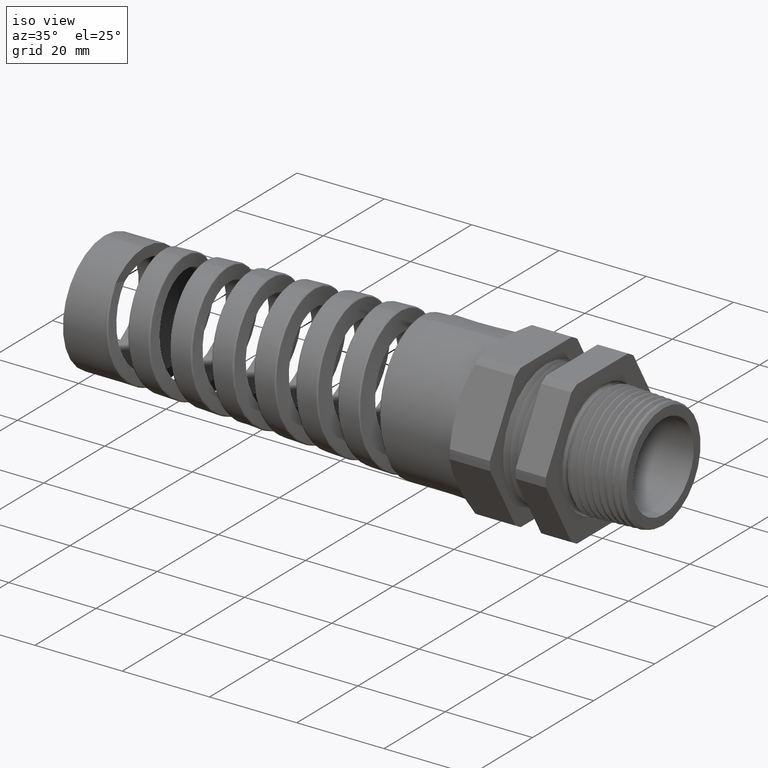
[diagram: clean part render]
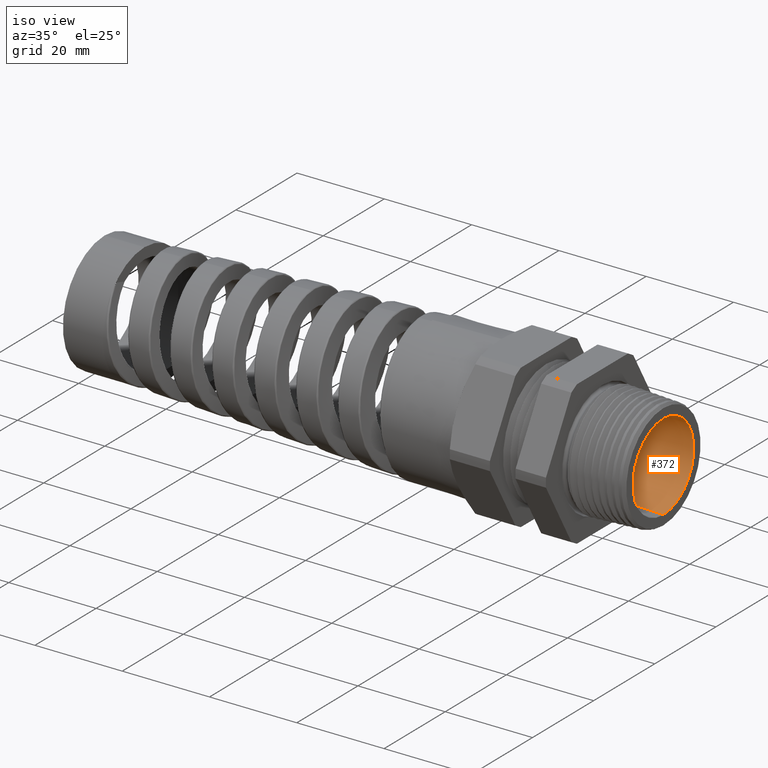
[diagram: same view with one face highlighted and labeled with its STEP entity id]
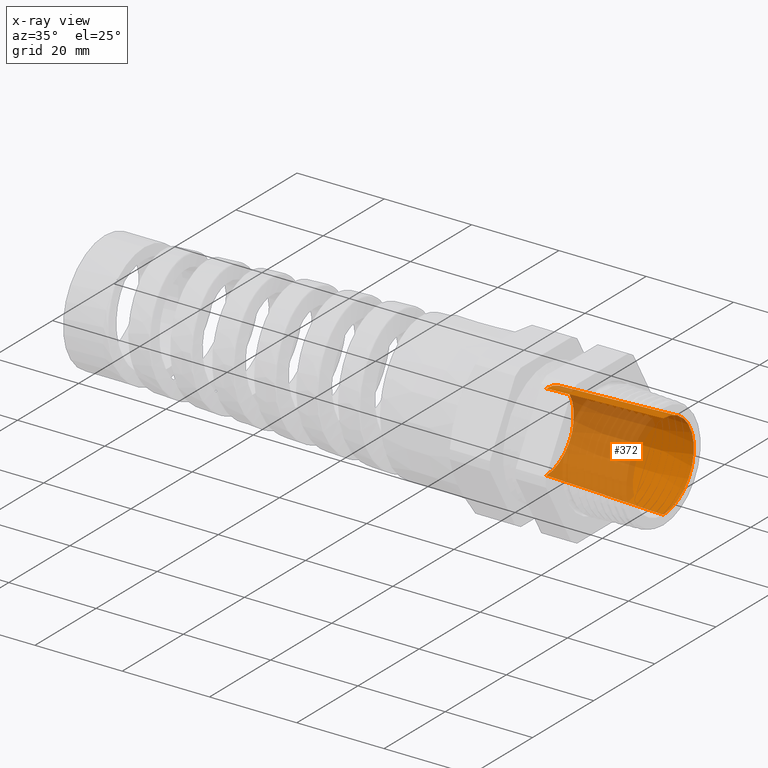
[diagram: x-ray of the same camera — body ghosted, the highlighted face saturated]
A machine part, iso view. The second image highlights one B-rep face of the part: STEP entity #372.
The next image is the same camera in x-ray: the body ghosted, the highlighted face saturated — about 56% of this face is hidden behind the body in this view.
In plain terms, the highlighted conical surface has half-angle 2 deg.
Its self-contained STEP definition (entity closure, byte-faithful):
#155 = EDGE_CURVE ( 'NONE', #529, #538, #1726, .T. ) ;
#185 = ORIENTED_EDGE ( 'NONE', *, *, #13715, .T. ) ;
#195 = ORIENTED_EDGE ( 'NONE', *, *, #510, .T. ) ;
#205 = ORIENTED_EDGE ( 'NONE', *, *, #545, .F. ) ;
#352 = EDGE_LOOP ( 'NONE', ( #205, #185, #195, #14021 ) ) ;
#372 = ADVANCED_FACE ( 'NONE', ( #1760 ), #1758, .F. ) ;
#510 = EDGE_CURVE ( 'NONE', #537, #538, #1850, .T. ) ;
#525 = VERTEX_POINT ( 'NONE', #1823 ) ;
#529 = VERTEX_POINT ( 'NONE', #1822 ) ;
#537 = VERTEX_POINT ( 'NONE', #1864 ) ;
#538 = VERTEX_POINT ( 'NONE', #1863 ) ;
#545 = EDGE_CURVE ( 'NONE', #525, #529, #1852, .T. ) ;
#1722 = DIRECTION ( 'NONE',  ( 0.0000000000000000000, 0.0000000000000000000, 1.000000000000000000 ) ) ;
#1723 = DIRECTION ( 'NONE',  ( -1.000000000000000000, 0.0000000000000000000, 0.0000000000000000000 ) ) ;
#1724 = CARTESIAN_POINT ( 'NONE',  ( 0.5500000000000001600, 0.0000000000000000000, 0.0000000000000000000 ) ) ;
#1725 = AXIS2_PLACEMENT_3D ( 'NONE', #1724, #1723, #1722 ) ;
#1726 = CIRCLE ( 'NONE', #1725, 0.3918705124550377300 ) ;
#1756 = CARTESIAN_POINT ( 'NONE',  ( -0.5058333333333334700, 0.0000000000000000000, 0.0000000000000000000 ) ) ;
#1757 = AXIS2_PLACEMENT_3D ( 'NONE', #1756, #1819, #1818 ) ;
#1758 = CONICAL_SURFACE ( 'NONE', #1757, 0.3549999999999999800, 0.03490658503988733300 ) ;
#1760 = FACE_OUTER_BOUND ( 'NONE', #352, .T. ) ;
#1818 = DIRECTION ( 'NONE',  ( 0.0000000000000000000, 0.0000000000000000000, -1.000000000000000000 ) ) ;
#1819 = DIRECTION ( 'NONE',  ( 1.000000000000000000, 0.0000000000000000000, 0.0000000000000000000 ) ) ;
#1822 = CARTESIAN_POINT ( 'NONE',  ( 0.5500000000000001600, 4.799029687582950000E-017, 0.3918705124550377300 ) ) ;
#1823 = CARTESIAN_POINT ( 'NONE',  ( -0.5058333333333334700, 0.0000000000000000000, 0.3549999999999999800 ) ) ;
#1847 = DIRECTION ( 'NONE',  ( 0.9993908270190957600, 0.0000000000000000000, -0.03489949670250171200 ) ) ;
#1848 = VECTOR ( 'NONE', #1847, 39.37007874015748900 ) ;
#1849 = CARTESIAN_POINT ( 'NONE',  ( -0.5058333333333334700, 0.0000000000000000000, -0.3549999999999999800 ) ) ;
#1850 = LINE ( 'NONE', #1849, #1848 ) ;
#1852 = LINE ( 'NONE', #1917, #1916 ) ;
#1863 = CARTESIAN_POINT ( 'NONE',  ( 0.5500000000000001600, 0.0000000000000000000, -0.3918705124550377300 ) ) ;
#1864 = CARTESIAN_POINT ( 'NONE',  ( -0.5058333333333334700, 4.347496136973103500E-017, -0.3549999999999999800 ) ) ;
#1915 = DIRECTION ( 'NONE',  ( 0.9993908270190957600, 4.273955692857232700E-018, 0.03489949670250171200 ) ) ;
#1916 = VECTOR ( 'NONE', #1915, 39.37007874015748900 ) ;
#1917 = CARTESIAN_POINT ( 'NONE',  ( -0.5058333333333334700, 4.347496136973103500E-017, 0.3549999999999999800 ) ) ;
#13139 = CARTESIAN_POINT ( 'NONE',  ( -0.5058333333333334700, 0.0000000000000000000, 0.0000000000000000000 ) ) ;
#13140 = AXIS2_PLACEMENT_3D ( 'NONE', #13139, #13204, #13203 ) ;
#13141 = CIRCLE ( 'NONE', #13140, 0.3549999999999999800 ) ;
#13203 = DIRECTION ( 'NONE',  ( 0.0000000000000000000, 0.0000000000000000000, 1.000000000000000000 ) ) ;
#13204 = DIRECTION ( 'NONE',  ( -1.000000000000000000, 0.0000000000000000000, 0.0000000000000000000 ) ) ;
#13715 = EDGE_CURVE ( 'NONE', #525, #537, #13141, .T. ) ;
#14021 = ORIENTED_EDGE ( 'NONE', *, *, #155, .F. ) ;